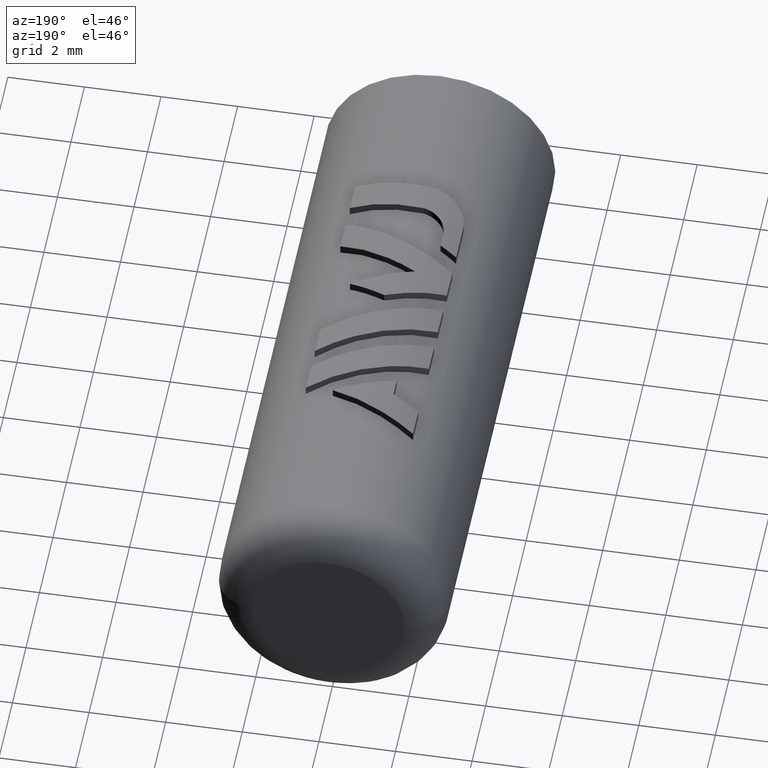
[diagram: clean part render]
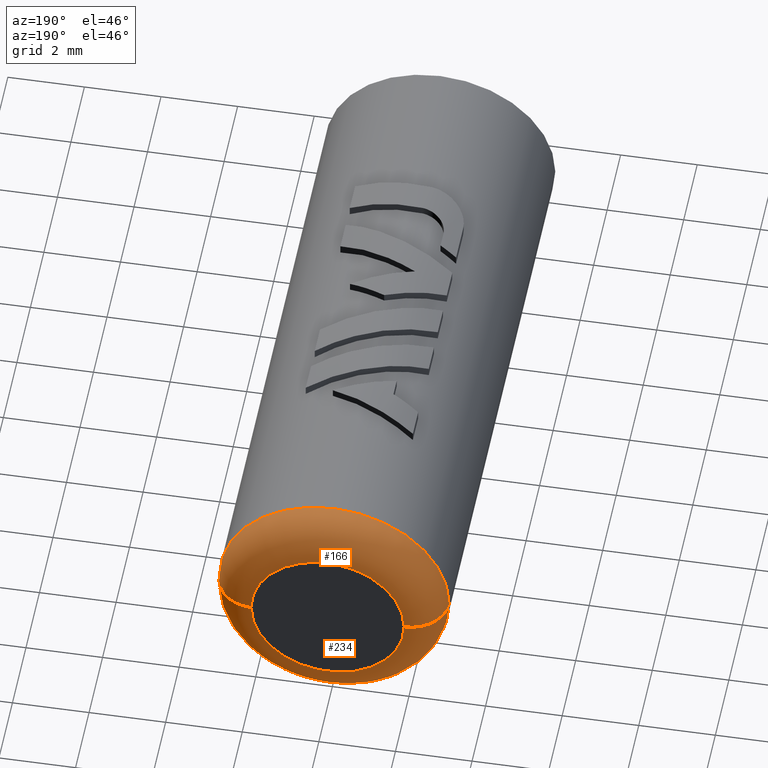
[diagram: same view with one multi-face feature highlighted, each face labeled with its STEP entity id]
A machine part, auxiliary view. The highlighted faces form ONE feature: a constant-radius fillet chain: 2 tangent blend faces with common blend radius 1 mm. The faces share edges in the B-rep.
Their STEP definitions:
[1] entity #166 (Torus):
#166=ADVANCED_FACE('',(#608),#609,.T.);
#608=FACE_OUTER_BOUND('',#1414,.T.);
#609=TOROIDAL_SURFACE('',#1415,2.0,1.0);
#1414=EDGE_LOOP('',(#5851,#5852,#5853,#5854));
#1415=AXIS2_PLACEMENT_3D('',#5855,#5856,#5857);
#5851=ORIENTED_EDGE('',*,*,#9257,.F.);
#5852=ORIENTED_EDGE('',*,*,#9258,.T.);
#5853=ORIENTED_EDGE('',*,*,#9259,.F.);
#5854=ORIENTED_EDGE('',*,*,#9260,.F.);
#5855=CARTESIAN_POINT('',(0.0,15.7,0.0));
#5856=DIRECTION('',(0.0,-1.0,0.0));
#5857=DIRECTION('',(1.0,0.0,-6.12323399573677E-17));
#9257=EDGE_CURVE('',#10955,#10948,#10956,.T.);
#9258=EDGE_CURVE('',#10955,#10957,#10958,.T.);
#9259=EDGE_CURVE('',#10952,#10957,#10959,.T.);
#9260=EDGE_CURVE('',#10948,#10952,#10960,.T.);
#10948=VERTEX_POINT('',#13843);
#10952=VERTEX_POINT('',#13848);
#10955=VERTEX_POINT('',#13852);
#10956=CIRCLE('',#13853,1.0);
#10957=VERTEX_POINT('',#13854);
#10958=CIRCLE('',#13855,2.0);
#10959=CIRCLE('',#13856,1.0);
#10960=CIRCLE('',#13857,3.0);
#13843=CARTESIAN_POINT('',(3.0,15.7,-1.83697019872103E-16));
#13848=CARTESIAN_POINT('',(-3.0,15.7,5.51091059616309E-16));
#13852=CARTESIAN_POINT('',(2.0,16.7,-1.22464679914735E-16));
#13853=AXIS2_PLACEMENT_3D('',#20360,#20361,#20362);
#13854=CARTESIAN_POINT('',(-2.0,16.7,3.67394039744206E-16));
#13855=AXIS2_PLACEMENT_3D('',#20363,#20364,#20365);
#13856=AXIS2_PLACEMENT_3D('',#20366,#20367,#20368);
#13857=AXIS2_PLACEMENT_3D('',#20369,#20370,#20371);
#20360=CARTESIAN_POINT('',(2.0,15.7,-3.67394039744206E-16));
#20361=DIRECTION('',(-1.83697019872103E-16,-0.0,-1.0));
#20362=DIRECTION('',(1.0,0.0,-1.83697019872103E-16));
#20363=CARTESIAN_POINT('',(0.0,16.7,0.0));
#20364=DIRECTION('',(0.0,-1.0,0.0));
#20365=DIRECTION('',(1.0,0.0,-6.12323399573677E-17));
#20366=CARTESIAN_POINT('',(-2.0,15.7,3.67394039744206E-16));
#20367=DIRECTION('',(-1.83697019872103E-16,0.0,-1.0));
#20368=DIRECTION('',(-1.0,0.0,1.83697019872103E-16));
#20369=CARTESIAN_POINT('',(0.0,15.7,0.0));
#20370=DIRECTION('',(0.0,-1.0,0.0));
#20371=DIRECTION('',(1.0,0.0,-6.12323399573677E-17));
[2] entity #234 (Torus):
#234=ADVANCED_FACE('',(#753),#754,.T.);
#753=FACE_OUTER_BOUND('',#1559,.T.);
#754=TOROIDAL_SURFACE('',#1560,2.0,1.0);
#1559=EDGE_LOOP('',(#7337,#7338,#7339,#7340));
#1560=AXIS2_PLACEMENT_3D('',#7341,#7342,#7343);
#7337=ORIENTED_EDGE('',*,*,#9257,.T.);
#7338=ORIENTED_EDGE('',*,*,#9256,.F.);
#7339=ORIENTED_EDGE('',*,*,#9259,.T.);
#7340=ORIENTED_EDGE('',*,*,#9903,.T.);
#7341=CARTESIAN_POINT('',(0.0,15.7,0.0));
#7342=DIRECTION('',(0.0,-1.0,0.0));
#7343=DIRECTION('',(1.0,0.0,-6.12323399573677E-17));
#9256=EDGE_CURVE('',#10952,#10948,#10954,.T.);
#9257=EDGE_CURVE('',#10955,#10948,#10956,.T.);
#9259=EDGE_CURVE('',#10952,#10957,#10959,.T.);
#9903=EDGE_CURVE('',#10957,#10955,#12164,.T.);
#10948=VERTEX_POINT('',#13843);
#10952=VERTEX_POINT('',#13848);
#10954=CIRCLE('',#13851,3.0);
#10955=VERTEX_POINT('',#13852);
#10956=CIRCLE('',#13853,1.0);
#10957=VERTEX_POINT('',#13854);
#10959=CIRCLE('',#13856,1.0);
#12164=CIRCLE('',#16424,2.0);
#13843=CARTESIAN_POINT('',(3.0,15.7,-1.83697019872103E-16));
#13848=CARTESIAN_POINT('',(-3.0,15.7,5.51091059616309E-16));
#13851=AXIS2_PLACEMENT_3D('',#20357,#20358,#20359);
#13852=CARTESIAN_POINT('',(2.0,16.7,-1.22464679914735E-16));
#13853=AXIS2_PLACEMENT_3D('',#20360,#20361,#20362);
#13854=CARTESIAN_POINT('',(-2.0,16.7,3.67394039744206E-16));
#13856=AXIS2_PLACEMENT_3D('',#20366,#20367,#20368);
#16424=AXIS2_PLACEMENT_3D('',#20729,#20730,#20731);
#20357=CARTESIAN_POINT('',(0.0,15.7,0.0));
#20358=DIRECTION('',(0.0,-1.0,0.0));
#20359=DIRECTION('',(1.0,0.0,-6.12323399573677E-17));
#20360=CARTESIAN_POINT('',(2.0,15.7,-3.67394039744206E-16));
#20361=DIRECTION('',(-1.83697019872103E-16,-0.0,-1.0));
#20362=DIRECTION('',(1.0,0.0,-1.83697019872103E-16));
#20366=CARTESIAN_POINT('',(-2.0,15.7,3.67394039744206E-16));
#20367=DIRECTION('',(-1.83697019872103E-16,0.0,-1.0));
#20368=DIRECTION('',(-1.0,0.0,1.83697019872103E-16));
#20729=CARTESIAN_POINT('',(0.0,16.7,0.0));
#20730=DIRECTION('',(0.0,-1.0,0.0));
#20731=DIRECTION('',(1.0,0.0,-6.12323399573677E-17));